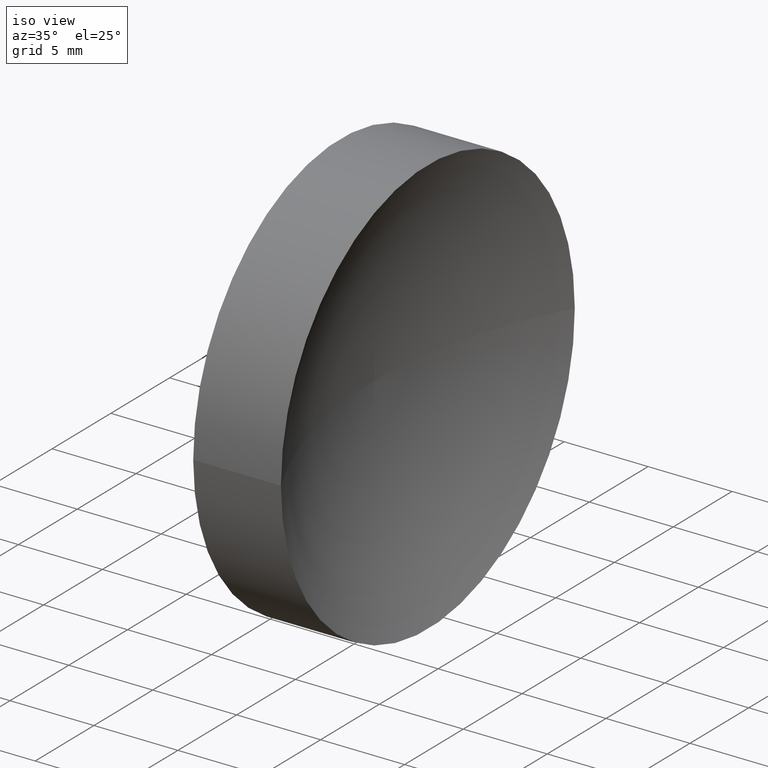
[diagram: clean part render]
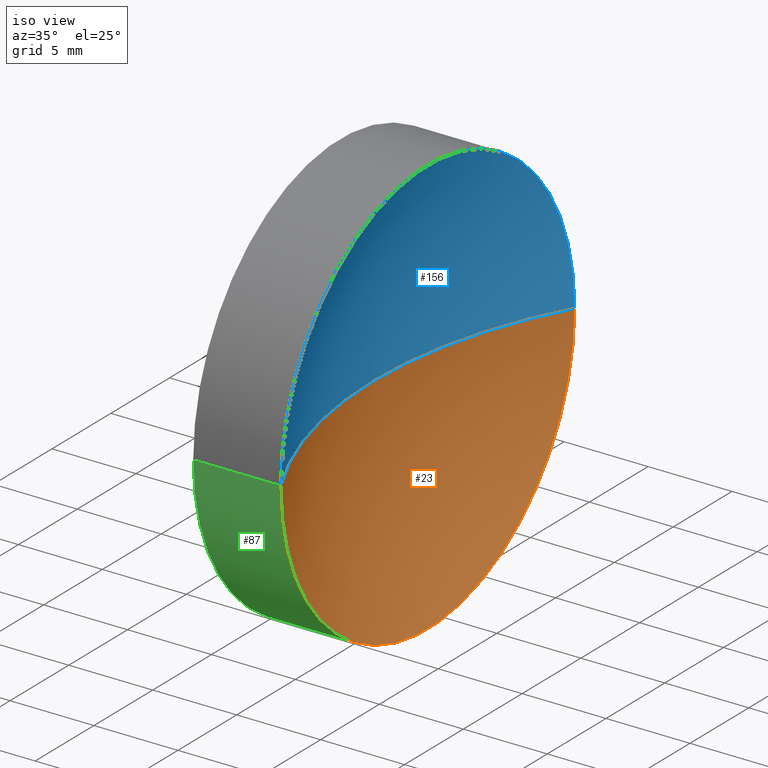
[diagram: same view with three faces highlighted in distinct colors, each labeled with its STEP entity id]
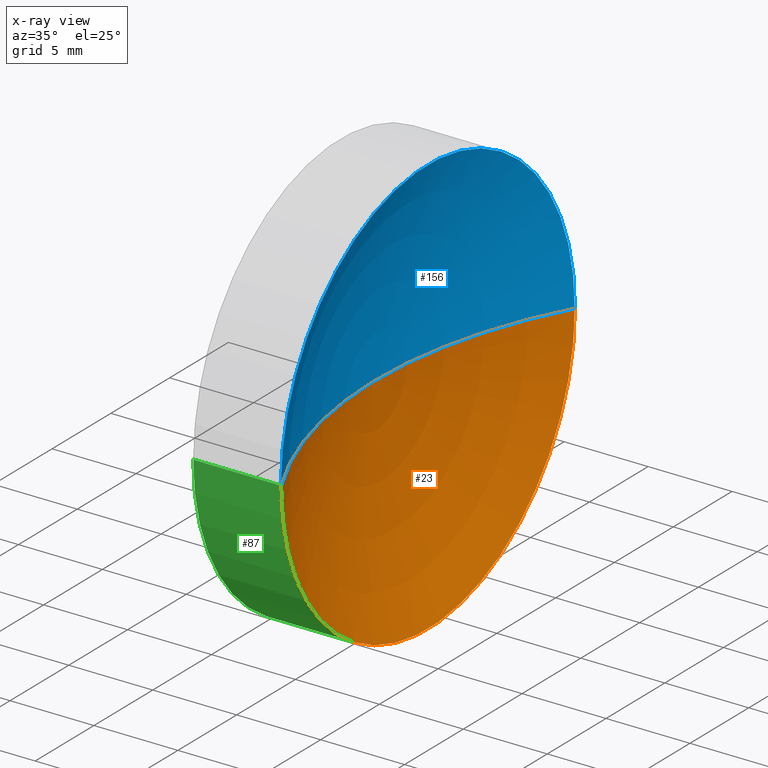
[diagram: x-ray of the same camera — body ghosted, the three highlighted faces saturated]
A machine part, iso view with three faces highlighted in distinct colors.
The next image is the same camera in x-ray (body ghosted, the three faces saturated) — at least one of them is partly hidden behind the body in this view.
Their STEP definitions:

[orange] entity #23 — the highlighted toroidal blend (fillet) surface has major radius 0 mm and minor (blend) radius 25.84 mm.
#1 = CIRCLE ( 'NONE', #109, 25.83999999999999600 ) ;
#4 = CARTESIAN_POINT ( 'NONE',  ( 59.35819015806720200, 32.57872591329309800, 0.0000000000000000000 ) ) ;
#8 = DIRECTION ( 'NONE',  ( 0.0000000000000000000, -0.0000000000000000000, -1.000000000000000000 ) ) ;
#13 = CIRCLE ( 'NONE', #58, 25.83999999999999600 ) ;
#14 = EDGE_CURVE ( 'NONE', #164, #57, #13, .T. ) ;
#18 = CARTESIAN_POINT ( 'NONE',  ( 85.19819015802110600, 32.57877471879731200, 0.0000000000000000000 ) ) ;
#20 = CARTESIAN_POINT ( 'NONE',  ( 62.58283298949485400, 45.07872591329309800, 1.530808498934192500E-015 ) ) ;
#23 = ADVANCED_FACE ( 'NONE', ( #112 ), #118, .F. ) ;
#48 = DIRECTION ( 'NONE',  ( 0.0000000000000000000, -1.000000000000000000, 0.0000000000000000000 ) ) ;
#49 = DIRECTION ( 'NONE',  ( 0.0000000000000000000, -1.000000000000000000, -1.224646799147353000E-016 ) ) ;
#57 = VERTEX_POINT ( 'NONE', #4 ) ;
#58 = AXIS2_PLACEMENT_3D ( 'NONE', #18, #8, #79 ) ;
#61 = CARTESIAN_POINT ( 'NONE',  ( 62.58283298949485400, 20.07872591329307700, 0.0000000000000000000 ) ) ;
#71 = AXIS2_PLACEMENT_3D ( 'NONE', #95, #108, #48 ) ;
#72 = CARTESIAN_POINT ( 'NONE',  ( 85.19819015802110600, 32.57867710778885600, -5.976950453302504100E-021 ) ) ;
#79 = DIRECTION ( 'NONE',  ( -1.000000000000000000, 0.0000000000000000000, 0.0000000000000000000 ) ) ;
#95 = CARTESIAN_POINT ( 'NONE',  ( 62.58283298949485400, 32.57872591329309100, 0.0000000000000000000 ) ) ;
#100 = VERTEX_POINT ( 'NONE', #20 ) ;
#106 = ORIENTED_EDGE ( 'NONE', *, *, #14, .F. ) ;
#108 = DIRECTION ( 'NONE',  ( -1.000000000000000000, 4.853228644174421400E-016, -0.0000000000000000000 ) ) ;
#109 = AXIS2_PLACEMENT_3D ( 'NONE', #72, #124, #49 ) ;
#112 = FACE_OUTER_BOUND ( 'NONE', #166, .T. ) ;
#116 = EDGE_CURVE ( 'NONE', #100, #57, #1, .T. ) ;
#118 = TOROIDAL_SURFACE ( 'NONE', #126, -4.880550422753637700E-005, 25.83999999999999600 ) ;
#124 = DIRECTION ( 'NONE',  ( -5.943490924618453600E-032, -1.224646799147353200E-016, 1.000000000000000000 ) ) ;
#126 = AXIS2_PLACEMENT_3D ( 'NONE', #149, #159, #148 ) ;
#129 = CIRCLE ( 'NONE', #71, 12.50000000000000700 ) ;
#135 = ORIENTED_EDGE ( 'NONE', *, *, #163, .F. ) ;
#140 = ORIENTED_EDGE ( 'NONE', *, *, #116, .T. ) ;
#148 = DIRECTION ( 'NONE',  ( -4.853228644174421400E-016, -1.000000000000000000, 0.0000000000000000000 ) ) ;
#149 = CARTESIAN_POINT ( 'NONE',  ( 85.19819015802110600, 32.57872591329308400, 0.0000000000000000000 ) ) ;
#159 = DIRECTION ( 'NONE',  ( -1.000000000000000000, 4.853228644174421400E-016, -0.0000000000000000000 ) ) ;
#163 = EDGE_CURVE ( 'NONE', #100, #164, #129, .T. ) ;
#164 = VERTEX_POINT ( 'NONE', #61 ) ;
#166 = EDGE_LOOP ( 'NONE', ( #135, #140, #106 ) ) ;

[blue] entity #156 — the highlighted toroidal blend (fillet) surface has major radius 0 mm and minor (blend) radius 25.84 mm.
#1 = CIRCLE ( 'NONE', #109, 25.83999999999999600 ) ;
#4 = CARTESIAN_POINT ( 'NONE',  ( 59.35819015806720200, 32.57872591329309800, 0.0000000000000000000 ) ) ;
#8 = DIRECTION ( 'NONE',  ( 0.0000000000000000000, -0.0000000000000000000, -1.000000000000000000 ) ) ;
#9 = DIRECTION ( 'NONE',  ( -1.000000000000000000, 4.853228644174421400E-016, -0.0000000000000000000 ) ) ;
#11 = ORIENTED_EDGE ( 'NONE', *, *, #52, .F. ) ;
#13 = CIRCLE ( 'NONE', #58, 25.83999999999999600 ) ;
#14 = EDGE_CURVE ( 'NONE', #164, #57, #13, .T. ) ;
#18 = CARTESIAN_POINT ( 'NONE',  ( 85.19819015802110600, 32.57877471879731200, 0.0000000000000000000 ) ) ;
#20 = CARTESIAN_POINT ( 'NONE',  ( 62.58283298949485400, 45.07872591329309800, 1.530808498934192500E-015 ) ) ;
#45 = AXIS2_PLACEMENT_3D ( 'NONE', #97, #9, #111 ) ;
#49 = DIRECTION ( 'NONE',  ( 0.0000000000000000000, -1.000000000000000000, -1.224646799147353000E-016 ) ) ;
#52 = EDGE_CURVE ( 'NONE', #164, #100, #85, .T. ) ;
#56 = DIRECTION ( 'NONE',  ( -1.000000000000000000, 4.853228644174421400E-016, -0.0000000000000000000 ) ) ;
#57 = VERTEX_POINT ( 'NONE', #4 ) ;
#58 = AXIS2_PLACEMENT_3D ( 'NONE', #18, #8, #79 ) ;
#61 = CARTESIAN_POINT ( 'NONE',  ( 62.58283298949485400, 20.07872591329307700, 0.0000000000000000000 ) ) ;
#64 = ORIENTED_EDGE ( 'NONE', *, *, #14, .T. ) ;
#72 = CARTESIAN_POINT ( 'NONE',  ( 85.19819015802110600, 32.57867710778885600, -5.976950453302504100E-021 ) ) ;
#75 = EDGE_LOOP ( 'NONE', ( #130, #11, #64 ) ) ;
#79 = DIRECTION ( 'NONE',  ( -1.000000000000000000, 0.0000000000000000000, 0.0000000000000000000 ) ) ;
#85 = CIRCLE ( 'NONE', #143, 12.50000000000000700 ) ;
#97 = CARTESIAN_POINT ( 'NONE',  ( 85.19819015802110600, 32.57872591329308400, 0.0000000000000000000 ) ) ;
#100 = VERTEX_POINT ( 'NONE', #20 ) ;
#102 = TOROIDAL_SURFACE ( 'NONE', #45, -4.880550422753637700E-005, 25.83999999999999600 ) ;
#109 = AXIS2_PLACEMENT_3D ( 'NONE', #72, #124, #49 ) ;
#111 = DIRECTION ( 'NONE',  ( -4.853228644174421400E-016, -1.000000000000000000, 0.0000000000000000000 ) ) ;
#116 = EDGE_CURVE ( 'NONE', #100, #57, #1, .T. ) ;
#117 = CARTESIAN_POINT ( 'NONE',  ( 62.58283298949485400, 32.57872591329309100, 0.0000000000000000000 ) ) ;
#124 = DIRECTION ( 'NONE',  ( -5.943490924618453600E-032, -1.224646799147353200E-016, 1.000000000000000000 ) ) ;
#130 = ORIENTED_EDGE ( 'NONE', *, *, #116, .F. ) ;
#138 = FACE_OUTER_BOUND ( 'NONE', #75, .T. ) ;
#143 = AXIS2_PLACEMENT_3D ( 'NONE', #117, #56, #144 ) ;
#144 = DIRECTION ( 'NONE',  ( 0.0000000000000000000, -1.000000000000000000, 0.0000000000000000000 ) ) ;
#156 = ADVANCED_FACE ( 'NONE', ( #138 ), #102, .F. ) ;
#164 = VERTEX_POINT ( 'NONE', #61 ) ;

[green] entity #87 — the highlighted cylindrical surface (partial cylindrical patch) has radius 12.5 mm, axis along (-1, 0, -0).
#5 = CARTESIAN_POINT ( 'NONE',  ( 55.00739462442118800, 45.07872591329309800, 1.530808498934191900E-015 ) ) ;
#6 = EDGE_CURVE ( 'NONE', #164, #68, #114, .T. ) ;
#12 = VERTEX_POINT ( 'NONE', #46 ) ;
#16 = CIRCLE ( 'NONE', #99, 12.49999999999999600 ) ;
#20 = CARTESIAN_POINT ( 'NONE',  ( 62.58283298949485400, 45.07872591329309800, 1.530808498934192500E-015 ) ) ;
#29 = DIRECTION ( 'NONE',  ( -1.000000000000000000, 4.853228644174421400E-016, -0.0000000000000000000 ) ) ;
#30 = EDGE_CURVE ( 'NONE', #12, #68, #16, .T. ) ;
#32 = FACE_OUTER_BOUND ( 'NONE', #105, .T. ) ;
#33 = DIRECTION ( 'NONE',  ( -5.551115123125780700E-016, -1.000000000000000000, 0.0000000000000000000 ) ) ;
#35 = DIRECTION ( 'NONE',  ( -1.000000000000000000, 4.853228644174421400E-016, -0.0000000000000000000 ) ) ;
#41 = EDGE_CURVE ( 'NONE', #100, #12, #43, .T. ) ;
#43 = LINE ( 'NONE', #5, #150 ) ;
#44 = ORIENTED_EDGE ( 'NONE', *, *, #41, .F. ) ;
#46 = CARTESIAN_POINT ( 'NONE',  ( 57.35819015802111700, 45.07872591329309100, 1.530808498934192300E-015 ) ) ;
#48 = DIRECTION ( 'NONE',  ( 0.0000000000000000000, -1.000000000000000000, 0.0000000000000000000 ) ) ;
#61 = CARTESIAN_POINT ( 'NONE',  ( 62.58283298949485400, 20.07872591329307700, 0.0000000000000000000 ) ) ;
#63 = CYLINDRICAL_SURFACE ( 'NONE', #161, 12.50000000000000400 ) ;
#68 = VERTEX_POINT ( 'NONE', #77 ) ;
#71 = AXIS2_PLACEMENT_3D ( 'NONE', #95, #108, #48 ) ;
#73 = ORIENTED_EDGE ( 'NONE', *, *, #6, .T. ) ;
#77 = CARTESIAN_POINT ( 'NONE',  ( 57.35819015802110200, 20.07872591329309800, 0.0000000000000000000 ) ) ;
#78 = VECTOR ( 'NONE', #131, 1000.000000000000000 ) ;
#87 = ADVANCED_FACE ( 'NONE', ( #32 ), #63, .T. ) ;
#92 = ORIENTED_EDGE ( 'NONE', *, *, #163, .T. ) ;
#94 = DIRECTION ( 'NONE',  ( -5.551115123125784700E-016, -1.000000000000000000, 0.0000000000000000000 ) ) ;
#95 = CARTESIAN_POINT ( 'NONE',  ( 62.58283298949485400, 32.57872591329309100, 0.0000000000000000000 ) ) ;
#99 = AXIS2_PLACEMENT_3D ( 'NONE', #119, #29, #94 ) ;
#100 = VERTEX_POINT ( 'NONE', #20 ) ;
#104 = DIRECTION ( 'NONE',  ( -1.000000000000000000, 4.853228644174421400E-016, -0.0000000000000000000 ) ) ;
#105 = EDGE_LOOP ( 'NONE', ( #44, #92, #73, #153 ) ) ;
#108 = DIRECTION ( 'NONE',  ( -1.000000000000000000, 4.853228644174421400E-016, -0.0000000000000000000 ) ) ;
#110 = CARTESIAN_POINT ( 'NONE',  ( 55.00739462442118100, 32.57872591329309800, 0.0000000000000000000 ) ) ;
#114 = LINE ( 'NONE', #121, #78 ) ;
#119 = CARTESIAN_POINT ( 'NONE',  ( 57.35819015802111000, 32.57872591329309800, 0.0000000000000000000 ) ) ;
#121 = CARTESIAN_POINT ( 'NONE',  ( 55.00739462442117400, 20.07872591329309100, 0.0000000000000000000 ) ) ;
#129 = CIRCLE ( 'NONE', #71, 12.50000000000000700 ) ;
#131 = DIRECTION ( 'NONE',  ( -1.000000000000000000, 4.853228644174421400E-016, -0.0000000000000000000 ) ) ;
#150 = VECTOR ( 'NONE', #104, 1000.000000000000000 ) ;
#153 = ORIENTED_EDGE ( 'NONE', *, *, #30, .F. ) ;
#161 = AXIS2_PLACEMENT_3D ( 'NONE', #110, #35, #33 ) ;
#163 = EDGE_CURVE ( 'NONE', #100, #164, #129, .T. ) ;
#164 = VERTEX_POINT ( 'NONE', #61 ) ;